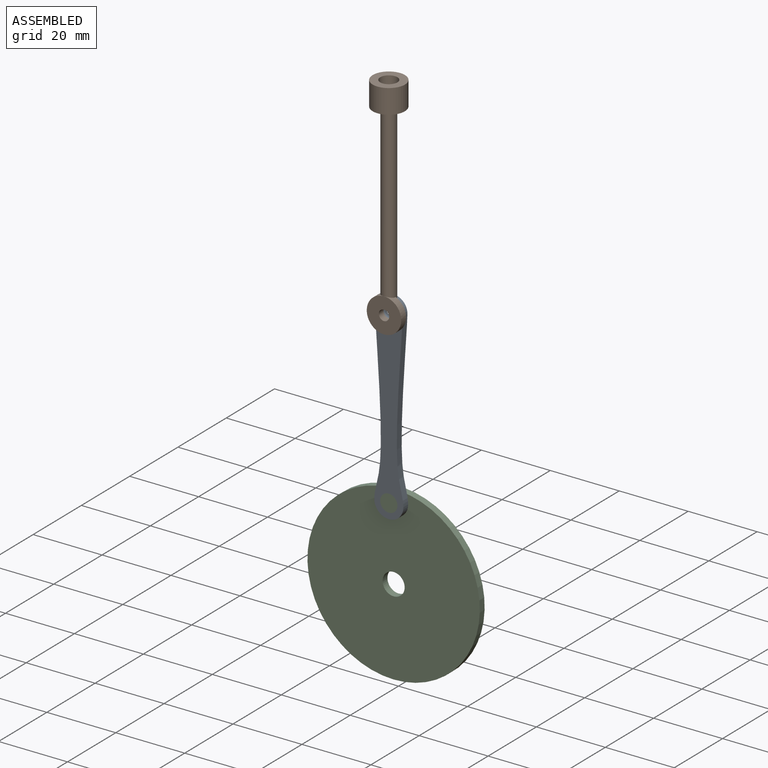
[diagram: assembled view]
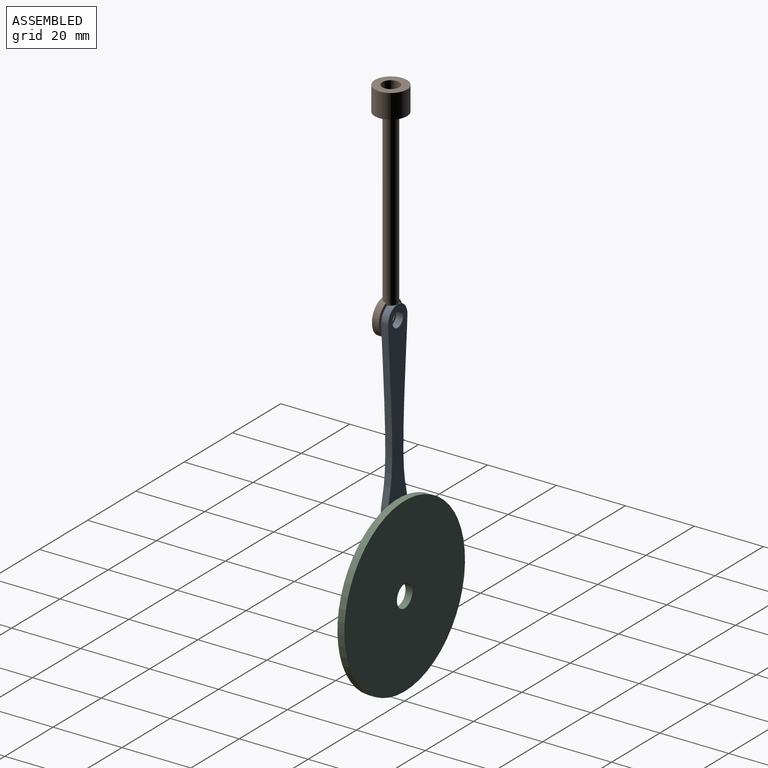
[diagram: assembled view, second angle]
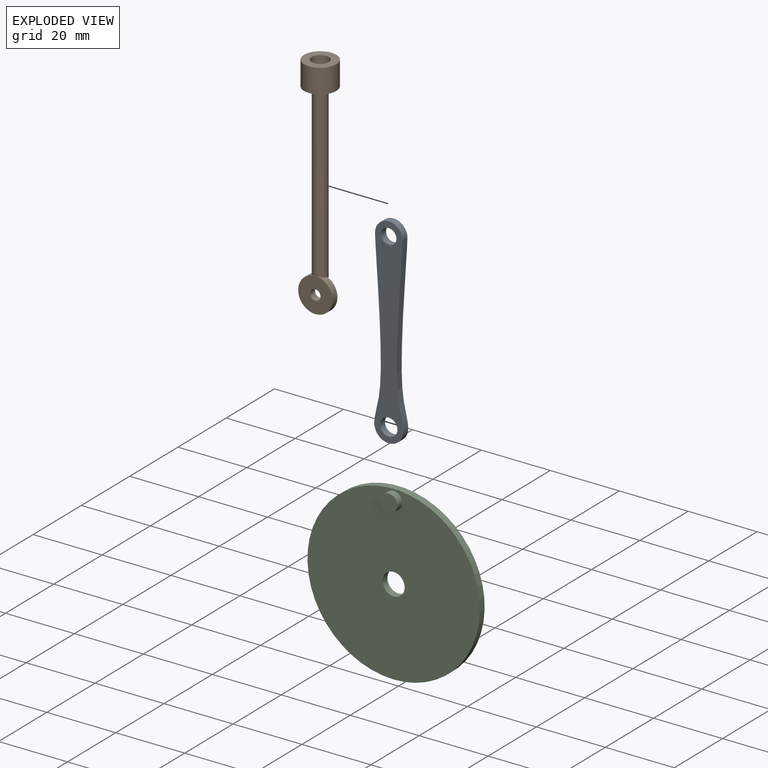
[diagram: exploded view]
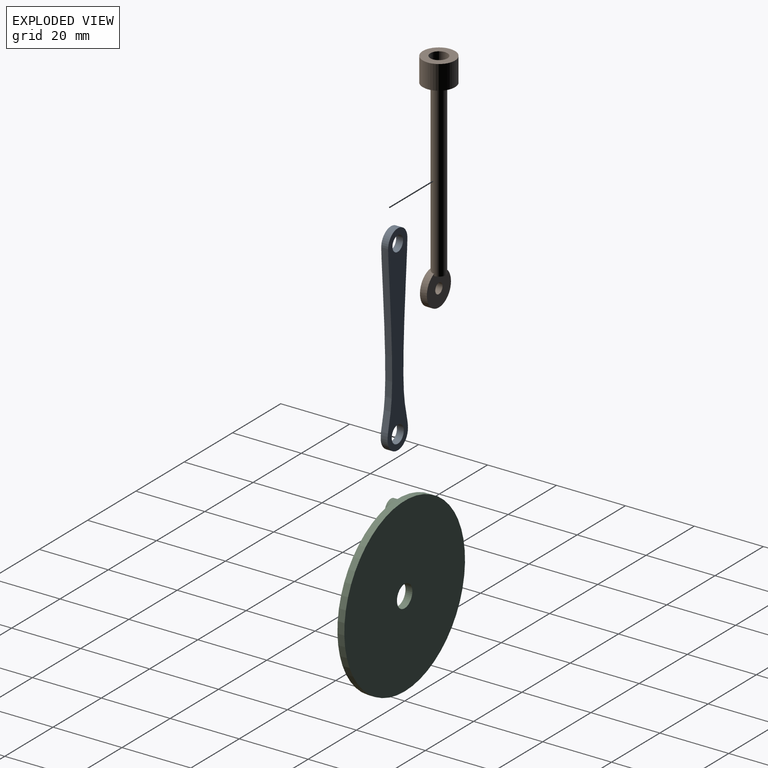
[diagram: exploded view, second angle]
ASSEMBLY  parts=3 mates=2
PART A: 10 faces, bbox 8.4x2x58.2 mm
  f0: extruded ~49.96x2mm, area 100.3mm2, adj f1,f6,f8,f9
  f1: cylinder r=4mm len=8mm, axis (0,1,0), area 25mm2, adj f0,f2,f8,f9
  f2: extruded ~49.96x2mm, area 100.3mm2, adj f1,f3,f8,f9
  f3: extruded ~2x0.08mm, area 0.2mm2, adj f2,f4,f8,f9
  f4: cylinder r=4.22mm len=8.43mm, axis (0,1,0), area 26.5mm2, adj f3,f6,f8,f9
  f5: cylinder r=2.19mm len=4.39mm, axis (0,1,0), area 27.6mm2, adj f8,f9
  f6: extruded ~2x0.08mm, area 0.2mm2, adj f0,f4,f8,f9
  f7: cylinder r=2.5mm len=5mm, axis (0,1,0), area 31.4mm2, adj f8,f9
  f8: plane 58.22x8.43mm, normal (0,-1,0), area 320.2mm2, adj f0,f1,f2,f3,f4,f5,f6,f7
  f9: plane 58.22x8.43mm, normal (0,1,0), area 320.2mm2, adj f0,f1,f2,f3,f4,f5,f6,f7
PART B: 11 faces, bbox 9.4x66x10 mm
  f0: cylinder r=2mm len=50mm, axis (0,-1,0), area 623.3mm2, adj f1,f6,f7,f8
  f1: plane 4x2mm, normal (0,1,0), area 6.3mm2, adj f0,f8
  f2: cylinder r=2.5mm len=5mm, axis (0,1,0), area 78.5mm2, adj f4,f5
  f3: cylinder r=4.68mm len=9.36mm, axis (0,1,0), area 205.8mm2, adj f4,f6
  f4: plane 9.36x9.36mm, normal (0,-1,0), area 49.1mm2, adj f2,f3
  f5: plane 5x5mm, normal (0,-1,0), area 19.6mm2, adj f2
  f6: plane 9.36x9.36mm, normal (0,1,0), area 56.2mm2, adj f0,f3
  f7: cylinder r=5mm len=10mm, axis (-1,0,0), area 56.4mm2, adj f0,f8,f10
  f8: plane 10x9.58mm, normal (-1,0,0), area 68mm2, adj f0,f1,f7,f9
  f9: cylinder r=1.5mm len=3mm, axis (-1,0,0), area 18.8mm2, adj f8,f10
  f10: plane 10x10mm, normal (1,0,0), area 71.5mm2, adj f7,f9
PART C: 6 faces, bbox 50x4x50 mm
  f0: cylinder r=3.2mm len=6.4mm, axis (0,1,0), area 40.2mm2, adj f2,f3
  f1: cylinder r=25mm len=50mm, axis (0,1,0), area 314.2mm2, adj f2,f3
  f2: plane 50x50mm, normal (0,-1,0), area 1911.7mm2, adj f0,f1,f4
  f3: plane 50x50mm, normal (0,1,0), area 1931.3mm2, adj f0,f1
  f4: cylinder r=2.5mm len=5mm, axis (0,1,0), area 31.4mm2, adj f2,f5
  f5: plane 5x5mm, normal (0,-1,0), area 19.6mm2, adj f4
PLACE A t=(0,-2,22)mm
PLACE B rot(axis=(-0.58,0.58,-0.58),120deg) t=(0,-4,128)mm
PLACE C at identity
MATE revolute A.f5 <-> B.f9  axis (0,-1,0) through (0,-4,72)mm
MATE revolute C.f4 <-> A.f7  axis (0,-1,0) through (0,-2,22)mm
